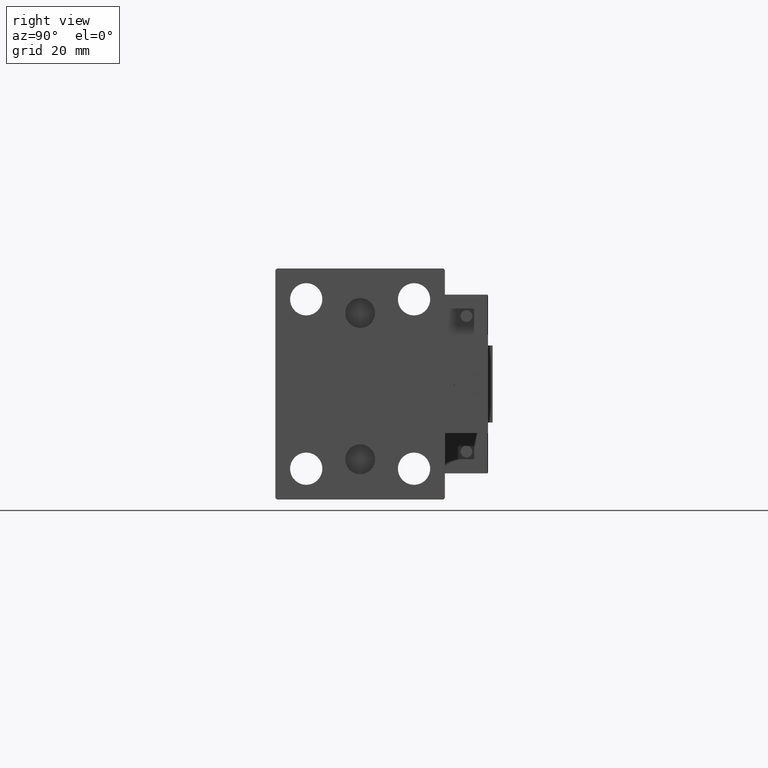
[diagram: clean part render]
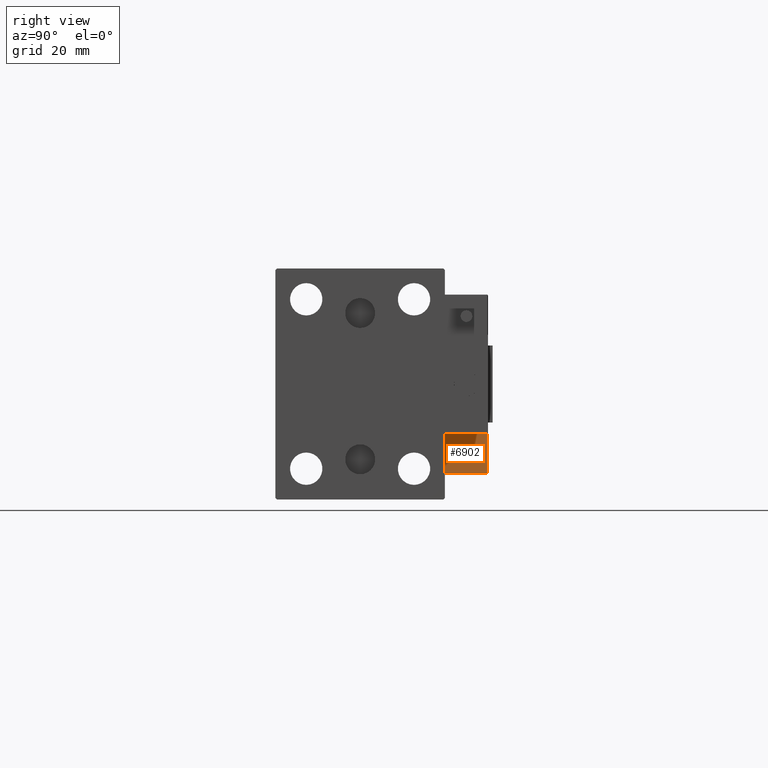
[diagram: same view with one face highlighted and labeled with its STEP entity id]
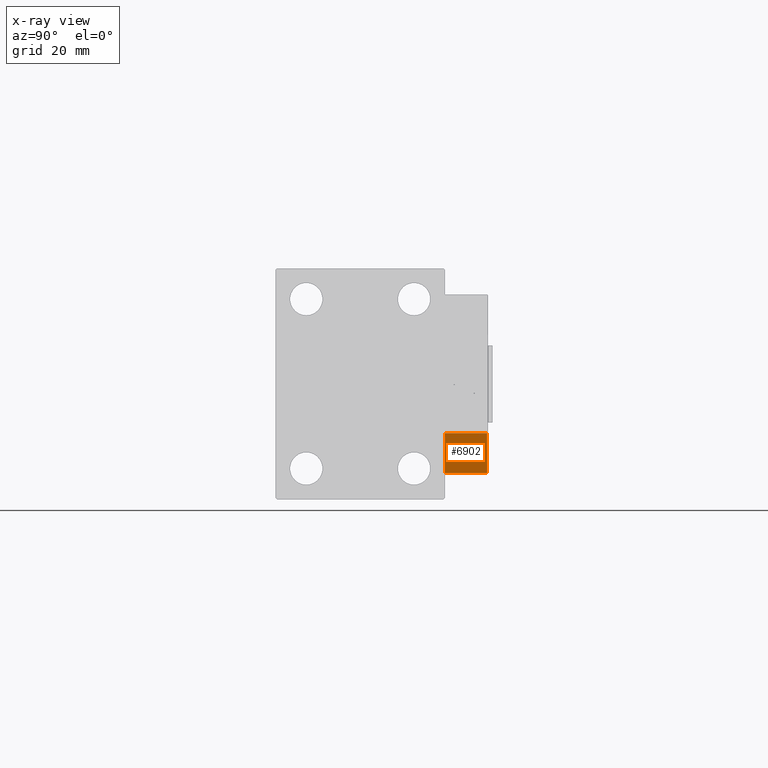
[diagram: x-ray of the same camera — body ghosted, the highlighted face saturated]
A machine part, right view. The second image highlights one B-rep face of the part: STEP entity #6902.
The next image is the same camera in x-ray: the body ghosted, the highlighted face saturated — about 6% of this face is hidden behind the body in this view.
In plain terms, the highlighted planar face has unit normal (-1, -0, 0).
Its self-contained STEP definition (entity closure, byte-faithful):
#1215 = EDGE_CURVE ( 'NONE', #35689, #28387, #51288, .T. ) ;
#3738 = FACE_OUTER_BOUND ( 'NONE', #23605, .T. ) ;
#5028 = EDGE_CURVE ( 'NONE', #28387, #42710, #25823, .T. ) ;
#6902 = ADVANCED_FACE ( 'NONE', ( #3738 ), #23800, .F. ) ;
#11634 = CARTESIAN_POINT ( 'NONE',  ( 27.00000000000006395, 7.000000000000007994, 13.70000000000000107 ) ) ;
#13708 = LINE ( 'NONE', #17882, #20208 ) ;
#17209 = CARTESIAN_POINT ( 'NONE',  ( 27.00000000000006395, 7.000000000000007994, 13.70000000000000107 ) ) ;
#17882 = CARTESIAN_POINT ( 'NONE',  ( 27.00000000000006395, 7.000000000000007994, 0.000000000000000000 ) ) ;
#18944 = DIRECTION ( 'NONE',  ( -0.000000000000000000, -1.000000000000000000, -0.000000000000000000 ) ) ;
#20208 = VECTOR ( 'NONE', #46293, 1000.000000000000000 ) ;
#22877 = AXIS2_PLACEMENT_3D ( 'NONE', #43616, #35535, #46750 ) ;
#23605 = EDGE_LOOP ( 'NONE', ( #35170, #29255, #43040, #39005 ) ) ;
#23800 = PLANE ( 'NONE',  #22877 ) ;
#24123 = CARTESIAN_POINT ( 'NONE',  ( 27.00000000000006395, 20.00000000000001776, 0.000000000000000000 ) ) ;
#25823 = LINE ( 'NONE', #26081, #36118 ) ;
#26081 = CARTESIAN_POINT ( 'NONE',  ( 27.00000000000006395, 7.000000000000007994, 14.00000000000000000 ) ) ;
#26781 = LINE ( 'NONE', #51045, #37339 ) ;
#28387 = VERTEX_POINT ( 'NONE', #17209 ) ;
#29255 = ORIENTED_EDGE ( 'NONE', *, *, #1215, .T. ) ;
#32738 = EDGE_CURVE ( 'NONE', #42710, #43097, #13708, .T. ) ;
#35004 = CARTESIAN_POINT ( 'NONE',  ( 27.00000000000006395, 20.00000000000001776, 13.70000000000000107 ) ) ;
#35170 = ORIENTED_EDGE ( 'NONE', *, *, #50692, .F. ) ;
#35535 = DIRECTION ( 'NONE',  ( -1.000000000000000000, 0.000000000000000000, 0.000000000000000000 ) ) ;
#35689 = VERTEX_POINT ( 'NONE', #35004 ) ;
#36118 = VECTOR ( 'NONE', #42222, 1000.000000000000000 ) ;
#37339 = VECTOR ( 'NONE', #42677, 1000.000000000000000 ) ;
#38257 = VECTOR ( 'NONE', #18944, 1000.000000000000000 ) ;
#39005 = ORIENTED_EDGE ( 'NONE', *, *, #32738, .T. ) ;
#42222 = DIRECTION ( 'NONE',  ( -0.000000000000000000, -0.000000000000000000, -1.000000000000000000 ) ) ;
#42677 = DIRECTION ( 'NONE',  ( -0.000000000000000000, -0.000000000000000000, -1.000000000000000000 ) ) ;
#42710 = VERTEX_POINT ( 'NONE', #42953 ) ;
#42953 = CARTESIAN_POINT ( 'NONE',  ( 27.00000000000006395, 7.000000000000007994, 0.000000000000000000 ) ) ;
#43040 = ORIENTED_EDGE ( 'NONE', *, *, #5028, .T. ) ;
#43097 = VERTEX_POINT ( 'NONE', #24123 ) ;
#43616 = CARTESIAN_POINT ( 'NONE',  ( 27.00000000000006395, 7.000000000000007994, 14.00000000000000000 ) ) ;
#46293 = DIRECTION ( 'NONE',  ( 0.000000000000000000, 1.000000000000000000, 0.000000000000000000 ) ) ;
#46750 = DIRECTION ( 'NONE',  ( 0.000000000000000000, 0.000000000000000000, 1.000000000000000000 ) ) ;
#50692 = EDGE_CURVE ( 'NONE', #35689, #43097, #26781, .T. ) ;
#51045 = CARTESIAN_POINT ( 'NONE',  ( 27.00000000000006395, 20.00000000000001776, 14.00000000000000000 ) ) ;
#51288 = LINE ( 'NONE', #11634, #38257 ) ;